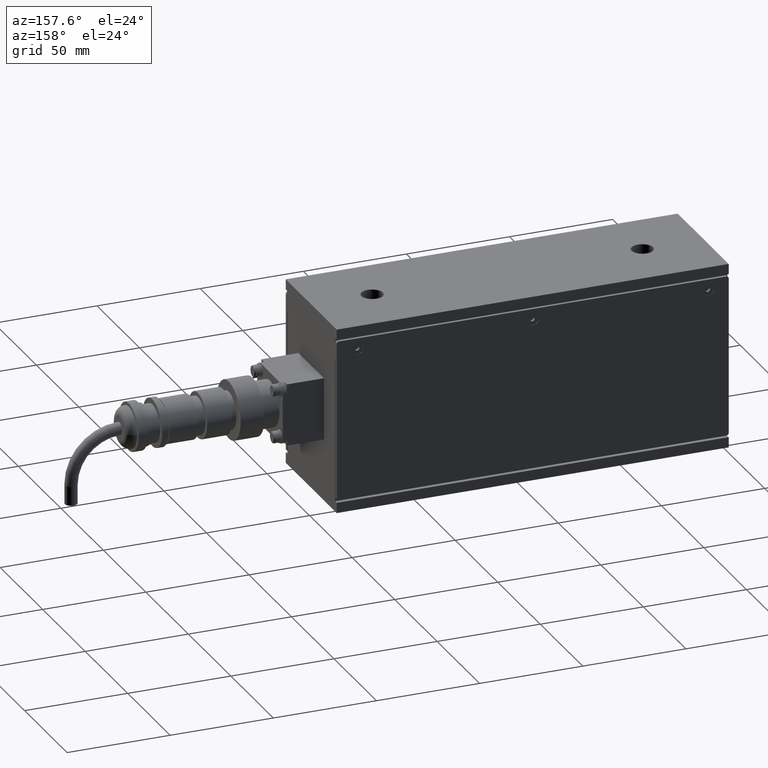
[diagram: clean part render]
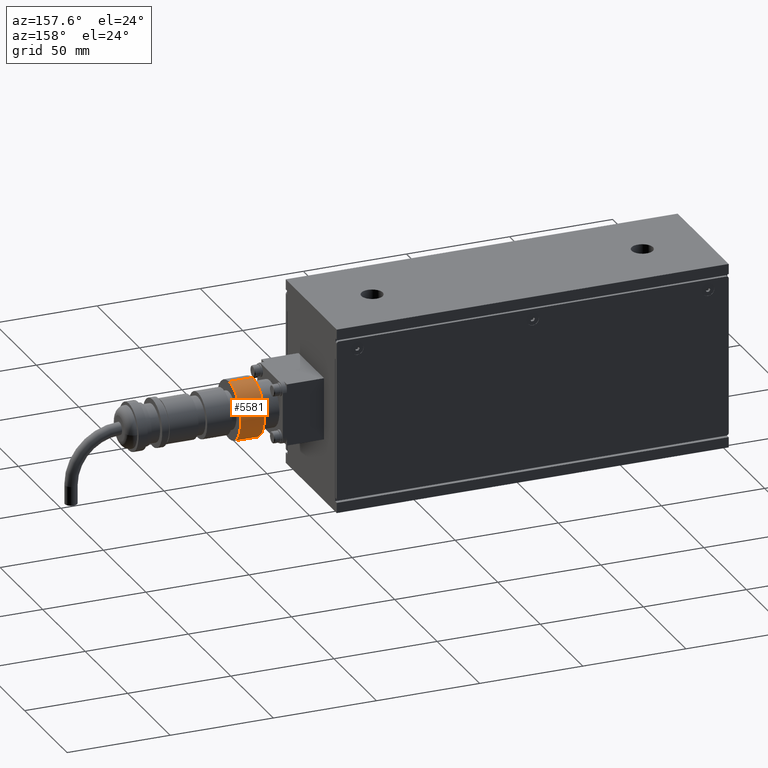
[diagram: same view with one face highlighted and labeled with its STEP entity id]
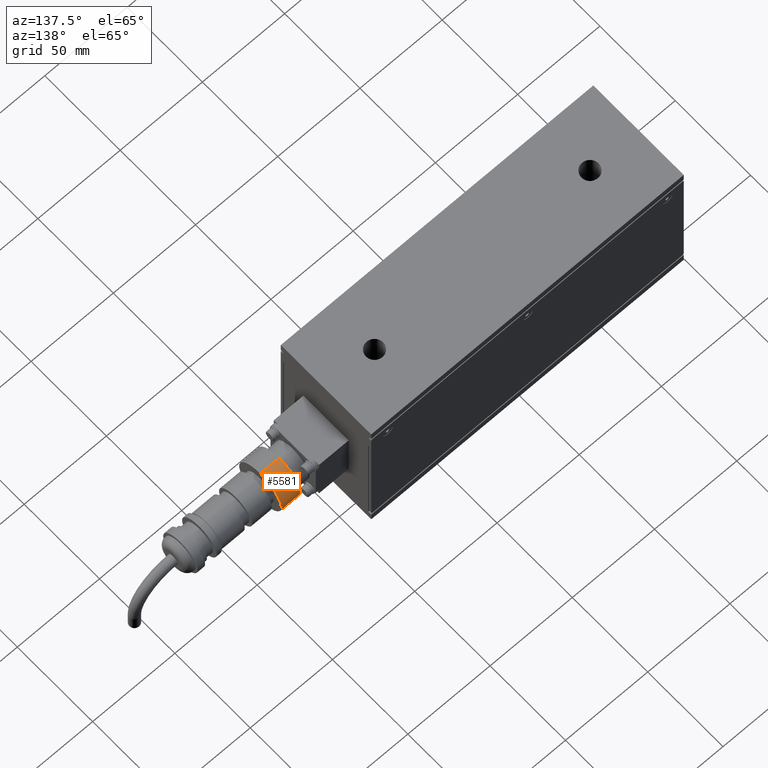
[diagram: same view with one face highlighted and labeled with its STEP entity id]
A machine part, auxiliary view. The second image highlights one B-rep face of the part: STEP entity #5581.
A second angle (auxiliary view) of the same face is appended — the face is thin or edge-on in the first view.
In plain terms, the highlighted cylindrical surface (edge-blend (fillet) strip) has radius 14 mm, axis along (1, 0, 0).
Its self-contained STEP definition (entity closure, byte-faithful):
#3739=CARTESIAN_POINT('',(-14.000000000000004,30.250000000000227,0.0));
#3740=VERTEX_POINT('',#3739);
#3741=CARTESIAN_POINT('',(-14.000000000000004,18.750000000000227,0.0));
#3742=VERTEX_POINT('',#3741);
#3743=CARTESIAN_POINT('',(-14.000000000000004,30.250000000000227,0.0));
#3744=DIRECTION('',(0.0,-1.0,0.0));
#3745=VECTOR('',#3744,11.500000000000000);
#3746=LINE('',#3743,#3745);
#3747=EDGE_CURVE('',#3740,#3742,#3746,.T.);
#3749=CARTESIAN_POINT('',(14.0,30.250000000000227,-1.714449E-015));
#3750=VERTEX_POINT('',#3749);
#3758=CARTESIAN_POINT('',(14.0,18.750000000000227,-1.714449E-015));
#3759=VERTEX_POINT('',#3758);
#3760=CARTESIAN_POINT('',(14.0,30.250000000000227,-1.714449E-015));
#3761=DIRECTION('',(0.0,-1.0,0.0));
#3762=VECTOR('',#3761,11.500000000000000);
#3763=LINE('',#3760,#3762);
#3764=EDGE_CURVE('',#3750,#3759,#3763,.T.);
#5549=CARTESIAN_POINT('',(-2.063341E-015,30.250000000000227,0.0));
#5550=DIRECTION('',(0.0,1.0,0.0));
#5551=DIRECTION('',(-1.0,0.0,0.0));
#5552=AXIS2_PLACEMENT_3D('',#5549,#5550,#5551);
#5553=CIRCLE('',#5552,14.000000000000002);
#5554=EDGE_CURVE('',#3740,#3750,#5553,.T.);
#5564=CARTESIAN_POINT('',(-2.063341E-015,24.500000000000227,0.0));
#5565=DIRECTION('',(0.0,1.0,0.0));
#5566=DIRECTION('',(-1.0,0.0,0.0));
#5567=AXIS2_PLACEMENT_3D('',#5564,#5565,#5566);
#5568=CYLINDRICAL_SURFACE('',#5567,14.000000000000002);
#5569=ORIENTED_EDGE('',*,*,#3747,.T.);
#5570=CARTESIAN_POINT('',(-2.063341E-015,18.750000000000227,0.0));
#5571=DIRECTION('',(0.0,1.0,0.0));
#5572=DIRECTION('',(-1.0,0.0,0.0));
#5573=AXIS2_PLACEMENT_3D('',#5570,#5571,#5572);
#5574=CIRCLE('',#5573,14.000000000000002);
#5575=EDGE_CURVE('',#3742,#3759,#5574,.T.);
#5576=ORIENTED_EDGE('',*,*,#5575,.T.);
#5577=ORIENTED_EDGE('',*,*,#3764,.F.);
#5578=ORIENTED_EDGE('',*,*,#5554,.F.);
#5579=EDGE_LOOP('',(#5569,#5576,#5577,#5578));
#5580=FACE_OUTER_BOUND('',#5579,.T.);
#5581=ADVANCED_FACE('',(#5580),#5568,.T.);